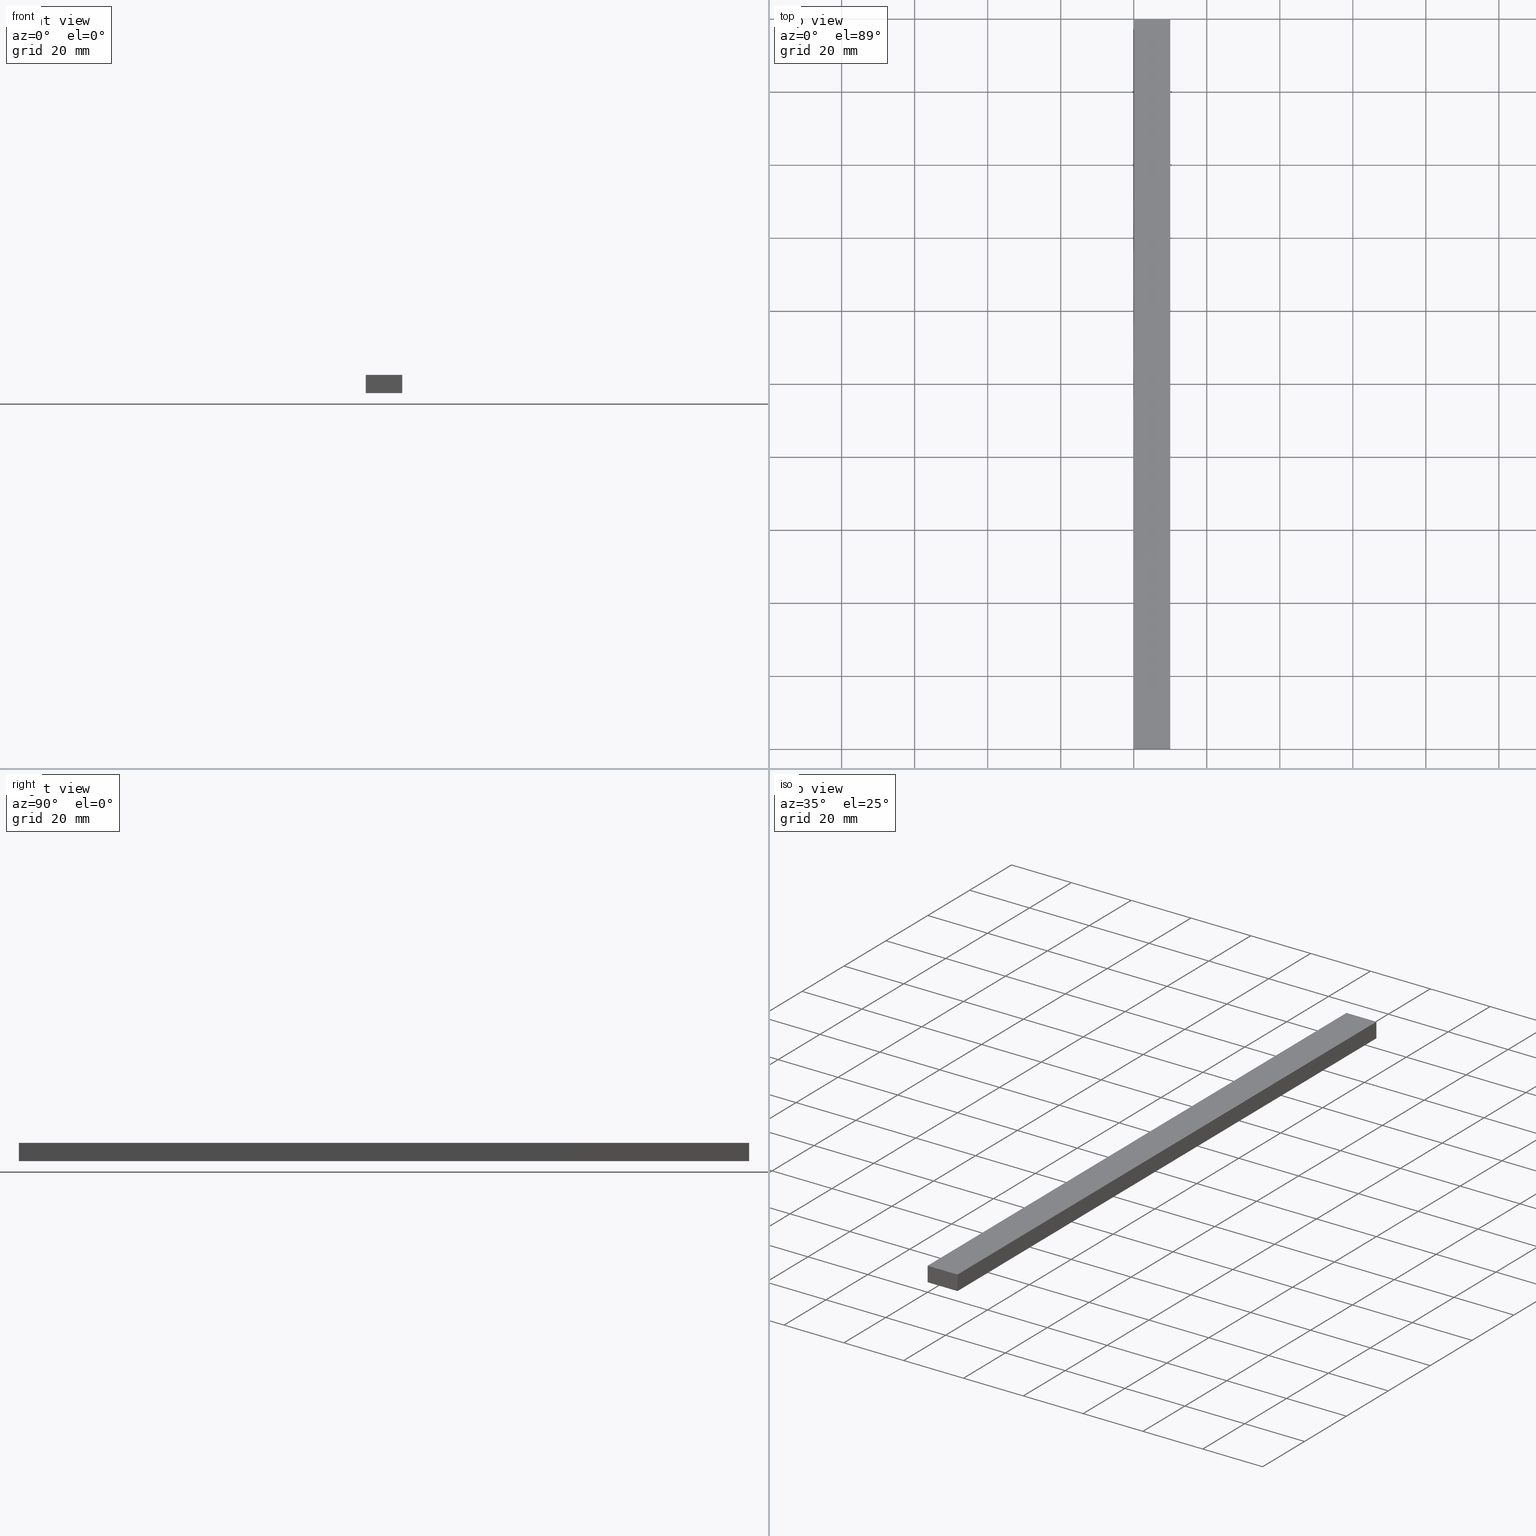
[diagram: canonical four-view strip — front | top / right | iso, engineering-drawing reading convention]
A machine part, canonical four-view strip (front | top / right | iso — engineering-drawing reading convention). The complete STEP part file that produces these views, byte-faithful:
ISO-10303-21;
HEADER;
FILE_DESCRIPTION (( 'STEP AP214' ),
    '1' );
FILE_NAME ('TM_339_5_10.STEP',
    '2016-05-09T04:18:53',
    ( '' ),
    ( '' ),
    'SwSTEP 2.0',
    'SolidWorks 2015',
    '' );
FILE_SCHEMA (( 'AUTOMOTIVE_DESIGN' ));
ENDSEC;

DATA;
#1 = ORIENTED_EDGE ( 'NONE', *, *, #211, .T. ) ;
#2 = PRODUCT_CONTEXT ( 'NONE', #44, 'mechanical' ) ;
#3 = CARTESIAN_POINT ( 'NONE',  ( 0.0000000000000000000, 1000.000000000000000, 0.0000000000000000000 ) ) ;
#4 = PRODUCT_DEFINITION_SHAPE ( 'NONE', 'NONE',  #84 ) ;
#5 = ORIENTED_EDGE ( 'NONE', *, *, #78, .F. ) ;
#6 = VECTOR ( 'NONE', #55, 1000.000000000000000 ) ;
#7 = LINE ( 'NONE', #31, #192 ) ;
#8 = EDGE_LOOP ( 'NONE', ( #5, #174, #91, #128 ) ) ;
#9 = CARTESIAN_POINT ( 'NONE',  ( 0.0000000000000000000, 0.0000000000000000000, 0.0000000000000000000 ) ) ;
#10 = SURFACE_SIDE_STYLE ('',( #229 ) ) ;
#11 = PRODUCT_CONTEXT ( 'NONE', #32, 'mechanical' ) ;
#12 = APPLICATION_PROTOCOL_DEFINITION ( 'draft international standard', 'automotive_design', 1998, #76 ) ;
#13 = ADVANCED_FACE ( 'NONE', ( #122 ), #112, .T. ) ;
#14 = SURFACE_SIDE_STYLE ('',( #73 ) ) ;
#15 = AXIS2_PLACEMENT_3D ( 'NONE', #178, #162, #235 ) ;
#16 = CARTESIAN_POINT ( 'NONE',  ( 10.00000000000000000, 0.0000000000000000000, 5.000000000000000000 ) ) ;
#17 = EDGE_LOOP ( 'NONE', ( #82, #159, #95, #1 ) ) ;
#18 = CARTESIAN_POINT ( 'NONE',  ( 0.0000000000000000000, 0.0000000000000000000, 0.0000000000000000000 ) ) ;
#19 =( LENGTH_UNIT ( ) NAMED_UNIT ( * ) SI_UNIT ( .MILLI., .METRE. ) );
#20 =( LENGTH_UNIT ( ) NAMED_UNIT ( * ) SI_UNIT ( .MILLI., .METRE. ) );
#21 = LINE ( 'NONE', #199, #100 ) ;
#22 = VERTEX_POINT ( 'NONE', #195 ) ;
#23 = PRESENTATION_STYLE_ASSIGNMENT (( #53 ) ) ;
#24 = SHAPE_REPRESENTATION ( 'rubber foam', ( #166 ), #141 ) ;
#25 = FACE_OUTER_BOUND ( 'NONE', #8, .T. ) ;
#26 = AXIS2_PLACEMENT_3D ( 'NONE', #139, #140, #238 ) ;
#27 = VERTEX_POINT ( 'NONE', #188 ) ;
#28 = SURFACE_STYLE_USAGE ( .BOTH. , #10 ) ;
#29 = CARTESIAN_POINT ( 'NONE',  ( 10.00000000000000000, 0.0000000000000000000, 0.0000000000000000000 ) ) ;
#30 = ORIENTED_EDGE ( 'NONE', *, *, #132, .F. ) ;
#31 = CARTESIAN_POINT ( 'NONE',  ( 0.0000000000000000000, 200.0000000000000000, 0.0000000000000000000 ) ) ;
#32 = APPLICATION_CONTEXT ( 'automotive_design' ) ;
#33 = LINE ( 'NONE', #70, #135 ) ;
#34 = PLANE ( 'NONE',  #127 ) ;
#35 = ITEM_DEFINED_TRANSFORMATION ( 'NONE', 'NONE', #26,  #166 ) ;
#36 = PRODUCT_DEFINITION_SHAPE ( 'NONE', 'NONE',  #42 ) ;
#37 = ORIENTED_EDGE ( 'NONE', *, *, #132, .T. ) ;
#38 =( GEOMETRIC_REPRESENTATION_CONTEXT ( 3 ) GLOBAL_UNCERTAINTY_ASSIGNED_CONTEXT ( ( #151 ) ) GLOBAL_UNIT_ASSIGNED_CONTEXT ( ( #106, #66, #72 ) ) REPRESENTATION_CONTEXT ( 'NONE', 'WORKASPACE' ) );
#39 = ORIENTED_EDGE ( 'NONE', *, *, #86, .F. ) ;
#40 = CONTEXT_DEPENDENT_SHAPE_REPRESENTATION ( #197, #65 ) ;
#41 = ORIENTED_EDGE ( 'NONE', *, *, #145, .T. ) ;
#42 = PRODUCT_DEFINITION ( 'UNKNOWN', '', #59, #216 ) ;
#43 = DIRECTION ( 'NONE',  ( -0.0000000000000000000, -0.0000000000000000000, 1.000000000000000000 ) ) ;
#44 = APPLICATION_CONTEXT ( 'automotive_design' ) ;
#45 =( NAMED_UNIT ( * ) PLANE_ANGLE_UNIT ( ) SI_UNIT ( $, .RADIAN. ) );
#46 = APPLICATION_PROTOCOL_DEFINITION ( 'draft international standard', 'automotive_design', 1998, #32 ) ;
#47 = DIRECTION ( 'NONE',  ( -1.000000000000000000, -0.0000000000000000000, -0.0000000000000000000 ) ) ;
#48 = DIRECTION ( 'NONE',  ( 1.000000000000000000, 0.0000000000000000000, 0.0000000000000000000 ) ) ;
#49 = DIRECTION ( 'NONE',  ( -1.000000000000000000, -0.0000000000000000000, -0.0000000000000000000 ) ) ;
#50 = AXIS2_PLACEMENT_3D ( 'NONE', #125, #56, #48 ) ;
#51 = CARTESIAN_POINT ( 'NONE',  ( 0.0000000000000000000, 1000.000000000000000, 5.000000000000000000 ) ) ;
#52 = LINE ( 'NONE', #182, #210 ) ;
#53 = SURFACE_STYLE_USAGE ( .BOTH. , #14 ) ;
#54 = EDGE_LOOP ( 'NONE', ( #64, #97, #80, #37 ) ) ;
#55 = DIRECTION ( 'NONE',  ( 0.0000000000000000000, -1.000000000000000000, 0.0000000000000000000 ) ) ;
#56 = DIRECTION ( 'NONE',  ( 0.0000000000000000000, 0.0000000000000000000, 1.000000000000000000 ) ) ;
#57 = PLANE ( 'NONE',  #149 ) ;
#58 = LINE ( 'NONE', #237, #85 ) ;
#59 = PRODUCT_DEFINITION_FORMATION_WITH_SPECIFIED_SOURCE ( 'ANY', '', #115, .NOT_KNOWN. ) ;
#60 = AXIS2_PLACEMENT_3D ( 'NONE', #136, #109, #77 ) ;
#61 = EDGE_CURVE ( 'NONE', #167, #152, #146, .T. ) ;
#62 = EDGE_CURVE ( 'NONE', #185, #152, #52, .T. ) ;
#63 = VECTOR ( 'NONE', #161, 1000.000000000000000 ) ;
#64 = ORIENTED_EDGE ( 'NONE', *, *, #211, .F. ) ;
#65 = PRODUCT_DEFINITION_SHAPE ( 'NONE', 'NONE',  #239 ) ;
#66 =( NAMED_UNIT ( * ) PLANE_ANGLE_UNIT ( ) SI_UNIT ( $, .RADIAN. ) );
#67 = DIRECTION ( 'NONE',  ( -1.000000000000000000, 0.0000000000000000000, 0.0000000000000000000 ) ) ;
#68 =( NAMED_UNIT ( * ) SI_UNIT ( $, .STERADIAN. ) SOLID_ANGLE_UNIT ( ) );
#69 =( NAMED_UNIT ( * ) PLANE_ANGLE_UNIT ( ) SI_UNIT ( $, .RADIAN. ) );
#70 = CARTESIAN_POINT ( 'NONE',  ( 10.00000000000000000, 1000.000000000000000, 5.000000000000000000 ) ) ;
#71 = VERTEX_POINT ( 'NONE', #198 ) ;
#72 =( NAMED_UNIT ( * ) SI_UNIT ( $, .STERADIAN. ) SOLID_ANGLE_UNIT ( ) );
#73 = SURFACE_STYLE_FILL_AREA ( #200 ) ;
#74 = PRODUCT_RELATED_PRODUCT_CATEGORY ( 'part', '', ( #115 ) ) ;
#75 = DIRECTION ( 'NONE',  ( 1.000000000000000000, 0.0000000000000000000, 0.0000000000000000000 ) ) ;
#76 = APPLICATION_CONTEXT ( 'automotive_design' ) ;
#77 = DIRECTION ( 'NONE',  ( 1.000000000000000000, 0.0000000000000000000, 0.0000000000000000000 ) ) ;
#78 = EDGE_CURVE ( 'NONE', #152, #27, #58, .T. ) ;
#79 = LINE ( 'NONE', #172, #148 ) ;
#80 = ORIENTED_EDGE ( 'NONE', *, *, #153, .T. ) ;
#81 = ORIENTED_EDGE ( 'NONE', *, *, #183, .F. ) ;
#82 = ORIENTED_EDGE ( 'NONE', *, *, #196, .T. ) ;
#83 = AXIS2_PLACEMENT_3D ( 'NONE', #103, #123, #203 ) ;
#84 = PRODUCT_DEFINITION ( 'UNKNOWN', '', #98, #208 ) ;
#85 = VECTOR ( 'NONE', #157, 1000.000000000000000 ) ;
#86 = EDGE_CURVE ( 'NONE', #134, #167, #7, .T. ) ;
#87 = CARTESIAN_POINT ( 'NONE',  ( 10.00000000000000000, 200.0000000000000000, 0.0000000000000000000 ) ) ;
#88 = APPLICATION_PROTOCOL_DEFINITION ( 'draft international standard', 'automotive_design', 1998, #156 ) ;
#89 = AXIS2_PLACEMENT_3D ( 'NONE', #51, #143, #165 ) ;
#90 =( NAMED_UNIT ( * ) SI_UNIT ( $, .STERADIAN. ) SOLID_ANGLE_UNIT ( ) );
#91 = ORIENTED_EDGE ( 'NONE', *, *, #183, .T. ) ;
#92 = DIRECTION ( 'NONE',  ( -0.0000000000000000000, -0.0000000000000000000, -1.000000000000000000 ) ) ;
#93 = DIRECTION ( 'NONE',  ( 1.000000000000000000, 0.0000000000000000000, 0.0000000000000000000 ) ) ;
#94 = DIRECTION ( 'NONE',  ( 0.0000000000000000000, 0.0000000000000000000, -1.000000000000000000 ) ) ;
#95 = ORIENTED_EDGE ( 'NONE', *, *, #78, .T. ) ;
#96 = FACE_OUTER_BOUND ( 'NONE', #108, .T. ) ;
#97 = ORIENTED_EDGE ( 'NONE', *, *, #228, .F. ) ;
#98 = PRODUCT_DEFINITION_FORMATION_WITH_SPECIFIED_SOURCE ( 'ANY', '', #99, .NOT_KNOWN. ) ;
#99 = PRODUCT ( 'rubber foam', 'rubber foam', '', ( #2 ) ) ;
#100 = VECTOR ( 'NONE', #221, 1000.000000000000000 ) ;
#101 = LINE ( 'NONE', #87, #170 ) ;
#102 = ORIENTED_EDGE ( 'NONE', *, *, #196, .F. ) ;
#103 = CARTESIAN_POINT ( 'NONE',  ( 10.00000000000000000, 1000.000000000000000, 0.0000000000000000000 ) ) ;
#104 = FILL_AREA_STYLE_COLOUR ( '', #207 ) ;
#105 = CARTESIAN_POINT ( 'NONE',  ( 0.0000000000000000000, 200.0000000000000000, 5.000000000000000000 ) ) ;
#106 =( LENGTH_UNIT ( ) NAMED_UNIT ( * ) SI_UNIT ( .MILLI., .METRE. ) );
#107 = LINE ( 'NONE', #105, #126 ) ;
#108 = EDGE_LOOP ( 'NONE', ( #230, #234, #204, #160 ) ) ;
#109 = DIRECTION ( 'NONE',  ( 0.0000000000000000000, 0.0000000000000000000, 1.000000000000000000 ) ) ;
#110 = PRODUCT_RELATED_PRODUCT_CATEGORY ( 'part', '', ( #99 ) ) ;
#111 = CARTESIAN_POINT ( 'NONE',  ( 0.0000000000000000000, 0.0000000000000000000, 0.0000000000000000000 ) ) ;
#112 = PLANE ( 'NONE',  #60 ) ;
#113 = EDGE_CURVE ( 'NONE', #134, #185, #131, .T. ) ;
#114 = LINE ( 'NONE', #29, #168 ) ;
#115 = PRODUCT ( 'TM_339_5_10', 'TM_339_5_10', '', ( #11 ) ) ;
#116 = UNCERTAINTY_MEASURE_WITH_UNIT (LENGTH_MEASURE( 1.000000000000000100E-005 ), #20, 'distance_accuracy_value', 'NONE');
#117 = FACE_OUTER_BOUND ( 'NONE', #187, .T. ) ;
#118 = EDGE_LOOP ( 'NONE', ( #102, #30, #41, #224 ) ) ;
#119 = VERTEX_POINT ( 'NONE', #16 ) ;
#120 = FILL_AREA_STYLE ('',( #173 ) ) ;
#121 = DIRECTION ( 'NONE',  ( -0.0000000000000000000, -0.0000000000000000000, -1.000000000000000000 ) ) ;
#122 = FACE_OUTER_BOUND ( 'NONE', #118, .T. ) ;
#123 = DIRECTION ( 'NONE',  ( 1.000000000000000000, 0.0000000000000000000, 0.0000000000000000000 ) ) ;
#124 = APPLICATION_PROTOCOL_DEFINITION ( 'draft international standard', 'automotive_design', 1998, #44 ) ;
#125 = CARTESIAN_POINT ( 'NONE',  ( 0.0000000000000000000, 0.0000000000000000000, 0.0000000000000000000 ) ) ;
#126 = VECTOR ( 'NONE', #49, 1000.000000000000000 ) ;
#127 = AXIS2_PLACEMENT_3D ( 'NONE', #3, #94, #67 ) ;
#128 = ORIENTED_EDGE ( 'NONE', *, *, #228, .T. ) ;
#129 = UNCERTAINTY_MEASURE_WITH_UNIT (LENGTH_MEASURE( 1.000000000000000100E-005 ), #154, 'distance_accuracy_value', 'NONE');
#130 =( GEOMETRIC_REPRESENTATION_CONTEXT ( 3 ) GLOBAL_UNCERTAINTY_ASSIGNED_CONTEXT ( ( #129 ) ) GLOBAL_UNIT_ASSIGNED_CONTEXT ( ( #154, #45, #68 ) ) REPRESENTATION_CONTEXT ( 'NONE', 'WORKASPACE' ) );
#131 = LINE ( 'NONE', #142, #63 ) ;
#132 = EDGE_CURVE ( 'NONE', #71, #119, #33, .T. ) ;
#133 = SHAPE_DEFINITION_REPRESENTATION ( #4, #24 ) ;
#134 = VERTEX_POINT ( 'NONE', #232 ) ;
#135 = VECTOR ( 'NONE', #231, 1000.000000000000000 ) ;
#136 = CARTESIAN_POINT ( 'NONE',  ( 10.00000000000000000, 1000.000000000000000, 5.000000000000000000 ) ) ;
#137 = CARTESIAN_POINT ( 'NONE',  ( 0.0000000000000000000, 200.0000000000000000, 0.0000000000000000000 ) ) ;
#138 = FACE_OUTER_BOUND ( 'NONE', #54, .T. ) ;
#139 = CARTESIAN_POINT ( 'NONE',  ( 0.0000000000000000000, 0.0000000000000000000, 0.0000000000000000000 ) ) ;
#140 = DIRECTION ( 'NONE',  ( 0.0000000000000000000, 0.0000000000000000000, 1.000000000000000000 ) ) ;
#141 =( GEOMETRIC_REPRESENTATION_CONTEXT ( 3 ) GLOBAL_UNCERTAINTY_ASSIGNED_CONTEXT ( ( #116 ) ) GLOBAL_UNIT_ASSIGNED_CONTEXT ( ( #20, #227, #184 ) ) REPRESENTATION_CONTEXT ( 'NONE', 'WORKASPACE' ) );
#142 = CARTESIAN_POINT ( 'NONE',  ( 0.0000000000000000000, 1000.000000000000000, 5.000000000000000000 ) ) ;
#143 = DIRECTION ( 'NONE',  ( -1.000000000000000000, 0.0000000000000000000, 0.0000000000000000000 ) ) ;
#144 = FACE_OUTER_BOUND ( 'NONE', #17, .T. ) ;
#145 = EDGE_CURVE ( 'NONE', #71, #134, #107, .T. ) ;
#146 = LINE ( 'NONE', #222, #202 ) ;
#147 = CLOSED_SHELL ( 'NONE', ( #13, #214, #217, #212, #220, #215 ) ) ;
#148 = VECTOR ( 'NONE', #47, 1000.000000000000000 ) ;
#149 = AXIS2_PLACEMENT_3D ( 'NONE', #137, #179, #75 ) ;
#150 = COLOUR_RGB ( '',0.7921568627450980000, 0.8196078431372548800, 0.9333333333333333500 ) ;
#151 = UNCERTAINTY_MEASURE_WITH_UNIT (LENGTH_MEASURE( 1.000000000000000100E-005 ), #106, 'distance_accuracy_value', 'NONE');
#152 = VERTEX_POINT ( 'NONE', #9 ) ;
#153 = EDGE_CURVE ( 'NONE', #22, #71, #101, .T. ) ;
#154 =( LENGTH_UNIT ( ) NAMED_UNIT ( * ) SI_UNIT ( .MILLI., .METRE. ) );
#155 = PLANE ( 'NONE',  #89 ) ;
#156 = APPLICATION_CONTEXT ( 'automotive_design' ) ;
#157 = DIRECTION ( 'NONE',  ( 1.000000000000000000, -0.0000000000000000000, -0.0000000000000000000 ) ) ;
#158 = SHAPE_REPRESENTATION_RELATIONSHIP ( 'NONE' , 'NONE' ,  #24, #163 ) ;
#159 = ORIENTED_EDGE ( 'NONE', *, *, #62, .T. ) ;
#160 = ORIENTED_EDGE ( 'NONE', *, *, #61, .T. ) ;
#161 = DIRECTION ( 'NONE',  ( 0.0000000000000000000, -1.000000000000000000, 0.0000000000000000000 ) ) ;
#162 = DIRECTION ( 'NONE',  ( 0.0000000000000000000, 0.0000000000000000000, 1.000000000000000000 ) ) ;
#163 = ADVANCED_BREP_SHAPE_REPRESENTATION ( '', ( #169, #166 ), #141 ) ;
#164 = STYLED_ITEM ( 'NONE', ( #226 ), #169 ) ;
#165 = DIRECTION ( 'NONE',  ( 0.0000000000000000000, 0.0000000000000000000, 1.000000000000000000 ) ) ;
#166 = AXIS2_PLACEMENT_3D ( 'NONE', #111, #205, #93 ) ;
#167 = VERTEX_POINT ( 'NONE', #177 ) ;
#168 = VECTOR ( 'NONE', #194, 1000.000000000000000 ) ;
#169 = MANIFOLD_SOLID_BREP ( '���߰�1', #147 ) ;
#170 = VECTOR ( 'NONE', #43, 1000.000000000000000 ) ;
#171 = DIRECTION ( 'NONE',  ( 0.0000000000000000000, -1.000000000000000000, 0.0000000000000000000 ) ) ;
#172 = CARTESIAN_POINT ( 'NONE',  ( 0.0000000000000000000, 0.0000000000000000000, 5.000000000000000000 ) ) ;
#173 = FILL_AREA_STYLE_COLOUR ( '', #150 ) ;
#174 = ORIENTED_EDGE ( 'NONE', *, *, #61, .F. ) ;
#175 = STYLED_ITEM ( 'NONE', ( #23 ), #163 ) ;
#176 = DIRECTION ( 'NONE',  ( -0.0000000000000000000, 1.000000000000000000, 0.0000000000000000000 ) ) ;
#177 = CARTESIAN_POINT ( 'NONE',  ( 0.0000000000000000000, 200.0000000000000000, 0.0000000000000000000 ) ) ;
#178 = CARTESIAN_POINT ( 'NONE',  ( 0.0000000000000000000, 0.0000000000000000000, 0.0000000000000000000 ) ) ;
#179 = DIRECTION ( 'NONE',  ( -0.0000000000000000000, 1.000000000000000000, 0.0000000000000000000 ) ) ;
#180 = ORIENTED_EDGE ( 'NONE', *, *, #153, .F. ) ;
#181 = DIRECTION ( 'NONE',  ( 1.000000000000000000, 0.0000000000000000000, 0.0000000000000000000 ) ) ;
#182 = CARTESIAN_POINT ( 'NONE',  ( 0.0000000000000000000, 0.0000000000000000000, 0.0000000000000000000 ) ) ;
#183 = EDGE_CURVE ( 'NONE', #167, #22, #21, .T. ) ;
#184 =( NAMED_UNIT ( * ) SI_UNIT ( $, .STERADIAN. ) SOLID_ANGLE_UNIT ( ) );
#185 = VERTEX_POINT ( 'NONE', #233 ) ;
#186 = SHAPE_REPRESENTATION ( 'TM_339_5_10', ( #50, #26 ), #38 ) ;
#187 = EDGE_LOOP ( 'NONE', ( #193, #180, #81, #39 ) ) ;
#188 = CARTESIAN_POINT ( 'NONE',  ( 10.00000000000000000, 0.0000000000000000000, 0.0000000000000000000 ) ) ;
#189 = MECHANICAL_DESIGN_GEOMETRIC_PRESENTATION_REPRESENTATION (  '', ( #164 ), #130 ) ;
#190 = PRESENTATION_LAYER_ASSIGNMENT (  '', '', ( #175 ) ) ;
#191 = SHAPE_DEFINITION_REPRESENTATION ( #36, #186 ) ;
#192 = VECTOR ( 'NONE', #92, 1000.000000000000000 ) ;
#193 = ORIENTED_EDGE ( 'NONE', *, *, #145, .F. ) ;
#194 = DIRECTION ( 'NONE',  ( -0.0000000000000000000, -0.0000000000000000000, 1.000000000000000000 ) ) ;
#195 = CARTESIAN_POINT ( 'NONE',  ( 10.00000000000000000, 200.0000000000000000, 0.0000000000000000000 ) ) ;
#196 = EDGE_CURVE ( 'NONE', #119, #185, #79, .T. ) ;
#197 =( REPRESENTATION_RELATIONSHIP ('NONE','NONE', #186, #24 ) REPRESENTATION_RELATIONSHIP_WITH_TRANSFORMATION ( #35 )SHAPE_REPRESENTATION_RELATIONSHIP( ) );
#198 = CARTESIAN_POINT ( 'NONE',  ( 10.00000000000000000, 200.0000000000000000, 5.000000000000000000 ) ) ;
#199 = CARTESIAN_POINT ( 'NONE',  ( 0.0000000000000000000, 200.0000000000000000, 0.0000000000000000000 ) ) ;
#200 = FILL_AREA_STYLE ('',( #104 ) ) ;
#201 = UNCERTAINTY_MEASURE_WITH_UNIT (LENGTH_MEASURE( 1.000000000000000100E-005 ), #19, 'distance_accuracy_value', 'NONE');
#202 = VECTOR ( 'NONE', #171, 1000.000000000000000 ) ;
#203 = DIRECTION ( 'NONE',  ( 0.0000000000000000000, 0.0000000000000000000, -1.000000000000000000 ) ) ;
#204 = ORIENTED_EDGE ( 'NONE', *, *, #86, .T. ) ;
#205 = DIRECTION ( 'NONE',  ( 0.0000000000000000000, 0.0000000000000000000, 1.000000000000000000 ) ) ;
#206 = CARTESIAN_POINT ( 'NONE',  ( 10.00000000000000000, 1000.000000000000000, 0.0000000000000000000 ) ) ;
#207 = COLOUR_RGB ( '',0.7921568627450980000, 0.8196078431372548800, 0.9333333333333333500 ) ;
#208 = PRODUCT_DEFINITION_CONTEXT ( 'detailed design', #156, 'design' ) ;
#209 = MECHANICAL_DESIGN_GEOMETRIC_PRESENTATION_REPRESENTATION (  '', ( #175 ), #223 ) ;
#210 = VECTOR ( 'NONE', #121, 1000.000000000000000 ) ;
#211 = EDGE_CURVE ( 'NONE', #27, #119, #114, .T. ) ;
#212 = ADVANCED_FACE ( 'NONE', ( #138 ), #219, .T. ) ;
#213 = LINE ( 'NONE', #206, #6 ) ;
#214 = ADVANCED_FACE ( 'NONE', ( #96 ), #155, .T. ) ;
#215 = ADVANCED_FACE ( 'NONE', ( #144 ), #225, .F. ) ;
#216 = PRODUCT_DEFINITION_CONTEXT ( 'detailed design', #76, 'design' ) ;
#217 = ADVANCED_FACE ( 'NONE', ( #25 ), #34, .T. ) ;
#218 = PRESENTATION_LAYER_ASSIGNMENT (  '', '', ( #164 ) ) ;
#219 = PLANE ( 'NONE',  #83 ) ;
#220 = ADVANCED_FACE ( 'NONE', ( #117 ), #57, .T. ) ;
#221 = DIRECTION ( 'NONE',  ( 1.000000000000000000, -0.0000000000000000000, -0.0000000000000000000 ) ) ;
#222 = CARTESIAN_POINT ( 'NONE',  ( 0.0000000000000000000, 1000.000000000000000, 0.0000000000000000000 ) ) ;
#223 =( GEOMETRIC_REPRESENTATION_CONTEXT ( 3 ) GLOBAL_UNCERTAINTY_ASSIGNED_CONTEXT ( ( #201 ) ) GLOBAL_UNIT_ASSIGNED_CONTEXT ( ( #19, #69, #90 ) ) REPRESENTATION_CONTEXT ( 'NONE', 'WORKASPACE' ) );
#224 = ORIENTED_EDGE ( 'NONE', *, *, #113, .T. ) ;
#225 = PLANE ( 'NONE',  #236 ) ;
#226 = PRESENTATION_STYLE_ASSIGNMENT (( #28 ) ) ;
#227 =( NAMED_UNIT ( * ) PLANE_ANGLE_UNIT ( ) SI_UNIT ( $, .RADIAN. ) );
#228 = EDGE_CURVE ( 'NONE', #22, #27, #213, .T. ) ;
#229 = SURFACE_STYLE_FILL_AREA ( #120 ) ;
#230 = ORIENTED_EDGE ( 'NONE', *, *, #62, .F. ) ;
#231 = DIRECTION ( 'NONE',  ( 0.0000000000000000000, -1.000000000000000000, 0.0000000000000000000 ) ) ;
#232 = CARTESIAN_POINT ( 'NONE',  ( 0.0000000000000000000, 200.0000000000000000, 5.000000000000000000 ) ) ;
#233 = CARTESIAN_POINT ( 'NONE',  ( 0.0000000000000000000, 0.0000000000000000000, 5.000000000000000000 ) ) ;
#234 = ORIENTED_EDGE ( 'NONE', *, *, #113, .F. ) ;
#235 = DIRECTION ( 'NONE',  ( 1.000000000000000000, 0.0000000000000000000, 0.0000000000000000000 ) ) ;
#236 = AXIS2_PLACEMENT_3D ( 'NONE', #18, #176, #181 ) ;
#237 = CARTESIAN_POINT ( 'NONE',  ( 0.0000000000000000000, 0.0000000000000000000, 0.0000000000000000000 ) ) ;
#238 = DIRECTION ( 'NONE',  ( 1.000000000000000000, 0.0000000000000000000, 0.0000000000000000000 ) ) ;
#239 = NEXT_ASSEMBLY_USAGE_OCCURRENCE ( 'NAUO1', ' ', ' ', #42, #84, $ ) ;
ENDSEC;
END-ISO-10303-21;
